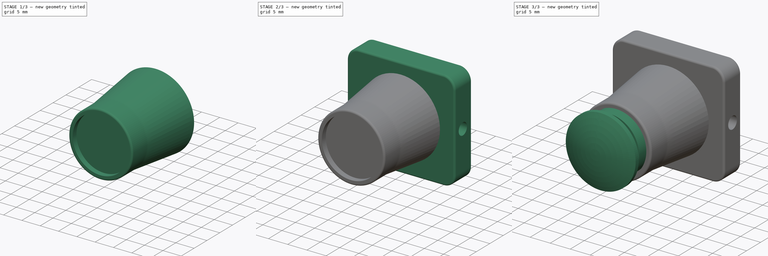
[diagram: build sequence overview — one tinted view per stage of 3, left to right]
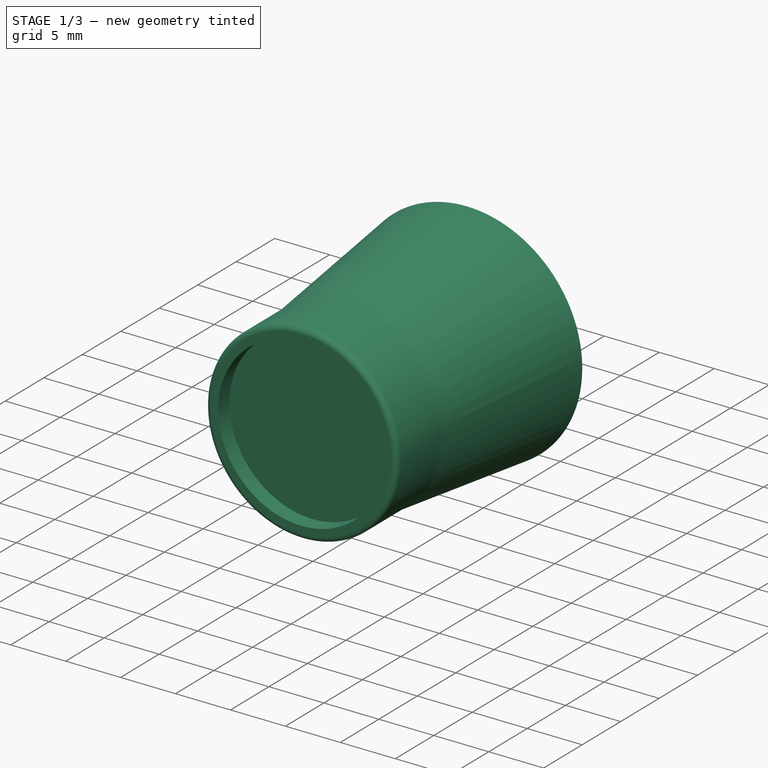
[diagram: stage 1 of 3 — iso view after this stage's code; geometry added in this stage tinted green]
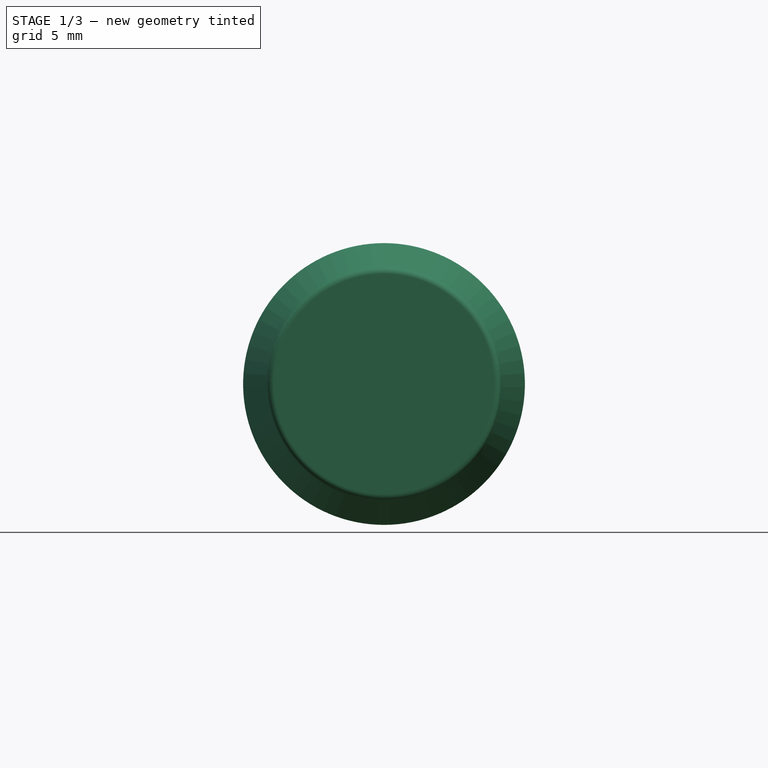
[diagram: stage 1 of 3 — front view after this stage's code; geometry added in this stage tinted green]
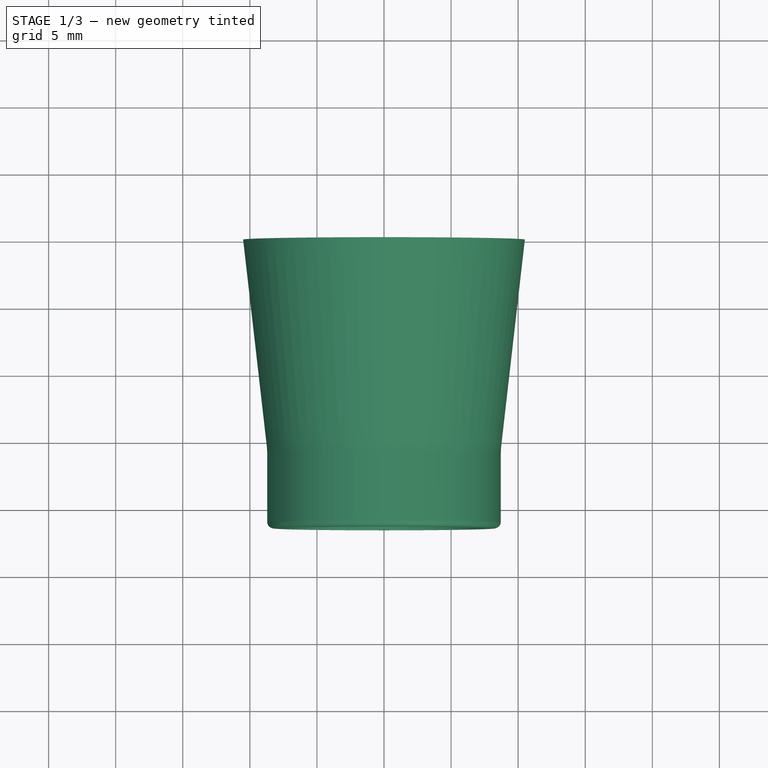
[diagram: stage 1 of 3 — top view after this stage's code; geometry added in this stage tinted green]
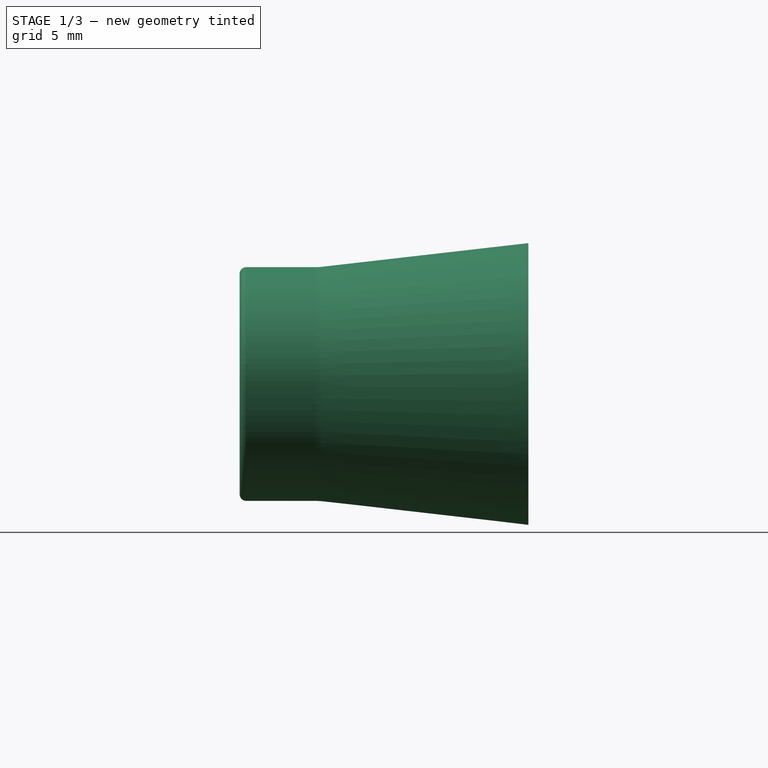
[diagram: stage 1 of 3 — right view after this stage's code; geometry added in this stage tinted green]
FCSTD DOCUMENT  (FreeCAD 0.18RUnknown)
Label: foxeer
License: All rights reserved
LicenseURL: http://en.wikipedia.org/wiki/All_rights_reserved
objects: Sketcher::SketchObject×4, PartDesign::Body×3, PartDesign::Fillet×3, PartDesign::Revolution×2, PartDesign::Pad×1, PartDesign::Pocket×1
note: 18 computed .brp shape members not serialized (recipe doc carries the construction recipe); baked Part::Feature solids carry a one-line shape summary decoded from their .brp

FEATURE [Sketcher::SketchObject] CopySketch003  label="Sketch003"
  Placement = pos=(0,0,0) rot=(0.57735,0.57735,0.57735;2.0944rad)
  sketch-geometry (12):
    g0: LineSegment [constr] StartX=0 StartY=12.9192 StartZ=0 EndX=-27 EndY=12.9192 EndZ=0
    g1: LineSegment [constr] StartX=-27 StartY=12.9192 StartZ=0 EndX=-27 EndY=-13.0808 EndZ=0
    g2: LineSegment [constr] StartX=-27 StartY=-13.0808 StartZ=0 EndX=0 EndY=-13.0808 EndZ=0
    g3: LineSegment [constr] StartX=0 StartY=-13.0808 StartZ=0 EndX=0 EndY=12.9192 EndZ=0
    g4: LineSegment StartX=-0.000444422 StartY=0 StartZ=0 EndX=-0.000444422 EndY=10.5018 EndZ=0
    g5: LineSegment StartX=-0.000444422 StartY=10.5018 StartZ=0 EndX=-15.4397 EndY=8.73314 EndZ=0
    g6: LineSegment StartX=-15.8644 StartY=8.70889 StartZ=0 EndX=-21.53 EndY=8.70889 EndZ=0
    g7: LineSegment StartX=-21.53 StartY=7.54936 StartZ=0 EndX=-20.0725 EndY=7.54936 EndZ=0
    g8: LineSegment StartX=-20.0725 StartY=7.54936 StartZ=0 EndX=-20.0725 EndY=0 EndZ=0
    g9: LineSegment StartX=-20.0725 StartY=0 StartZ=0 EndX=-0.000444422 EndY=0 EndZ=0
    g10: ArcOfCircle CenterX=-15.8644 CenterY=12.4405 CenterZ=0 NormalX=0 NormalY=0 NormalZ=1 AngleXU=0 Radius=3.73157 StartAngle=4.71239 EndAngle=4.82645
    g11: LineSegment StartX=-21.53 StartY=8.70889 StartZ=0 EndX=-21.53 EndY=7.54936 EndZ=0
  constraints (26):
    c: Coincident(g0,g1)
    c: Coincident(g1,g2)
    c: Coincident(g2,g3)
    c: Coincident(g3,g0)
    c: Horizontal(g0)
    c: Horizontal(g2)
    c: Vertical(g1)
    c: Vertical(g3)
    c: DistanceX(g0,g0) = 27
    c: DistanceY(g3,g3) = 26
    c: PointOnObject(g4,g-1)
    c: Vertical(g4)
    c: Coincident(g5,g4)
    c: Horizontal(g6)
    c: Horizontal(g7)
    c: Vertical(g8)
    c: Coincident(g9,g4)
    c: Tangent(g6,g10) = 1.5708
    c: Tangent(g5,g10) = 1.5708
    c: PointOnObject(g0,g-2)
    c: Coincident(g8,g7)
    c: Coincident(g11,g6)
    c: Coincident(g11,g7)
    c: Vertical(g11)
    c: Coincident(g8,g9)
    c: Horizontal(g9)
FEATURE [PartDesign::Revolution] Revolution001
  Angle = 360
  Axis = (1.129e-13,1,-1.129e-13)
  Base = (0,0,0)
  Placement = pos=(0,0,0) rot=(0.57735,0.57735,0.57735;2.0944rad)
  Profile = -> CopySketch003
  ReferenceAxis = -> CopySketch003 [H_Axis]
FEATURE [PartDesign::Body] Body
  Group = -> [Sketch,Pad,Sketch002,Pocket,Fillet,Fillet001]
  Origin = -> Origin
  Tip = -> Fillet001
FEATURE [PartDesign::Fillet] Fillet002
  Base = -> Revolution001 [Edge2]
  BaseFeature = -> Revolution001
  Placement = pos=(0,0,0) rot=(0.57735,0.57735,0.57735;2.0944rad)
  Radius = 0.5
FEATURE [PartDesign::Body] Body001
  Group = -> [Revolution001,Fillet002]
  Origin = -> Origin001
  Tip = -> Fillet002
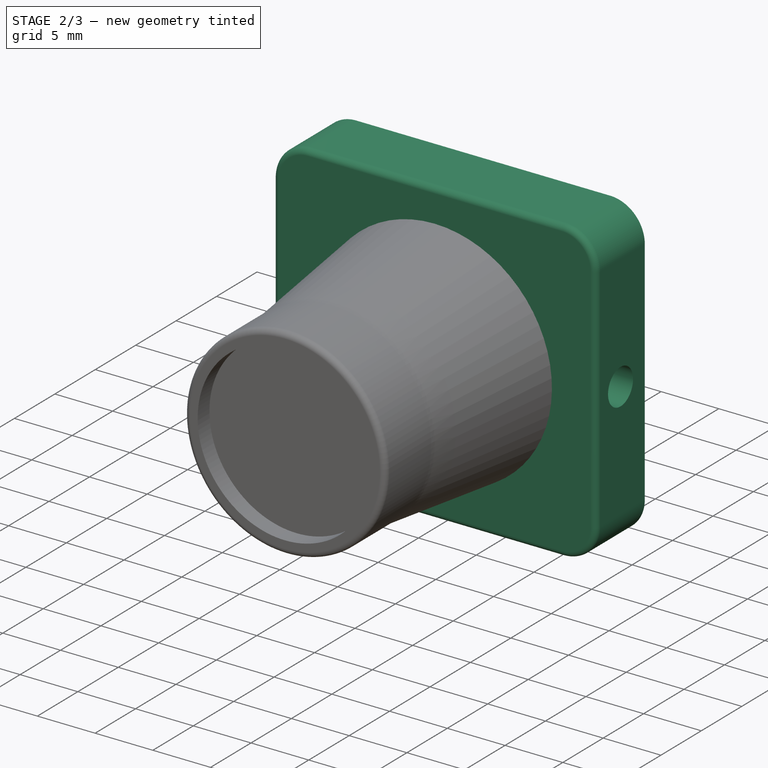
[diagram: stage 2 of 3 — iso view after this stage's code; geometry added in this stage tinted green]
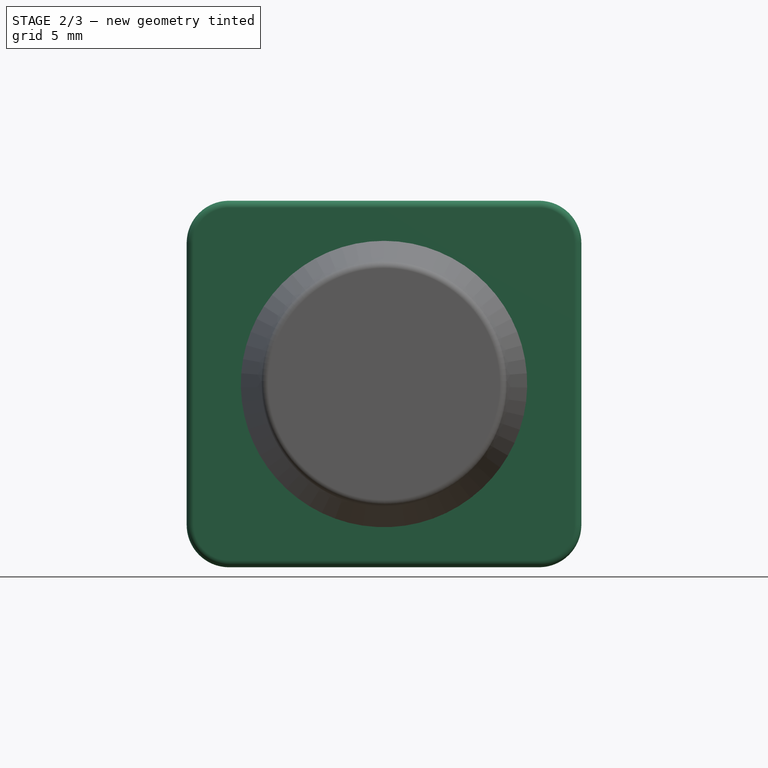
[diagram: stage 2 of 3 — front view after this stage's code; geometry added in this stage tinted green]
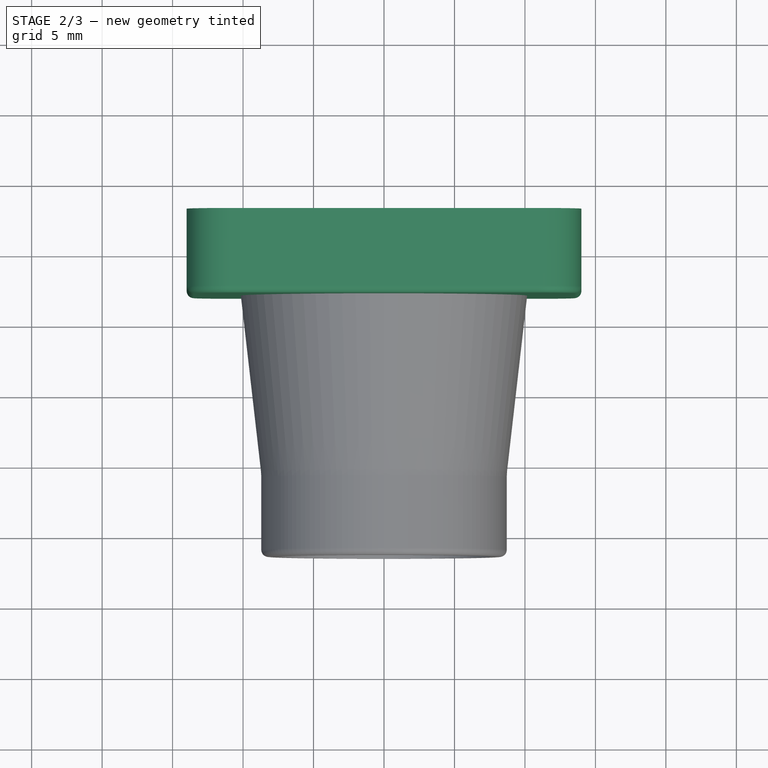
[diagram: stage 2 of 3 — top view after this stage's code; geometry added in this stage tinted green]
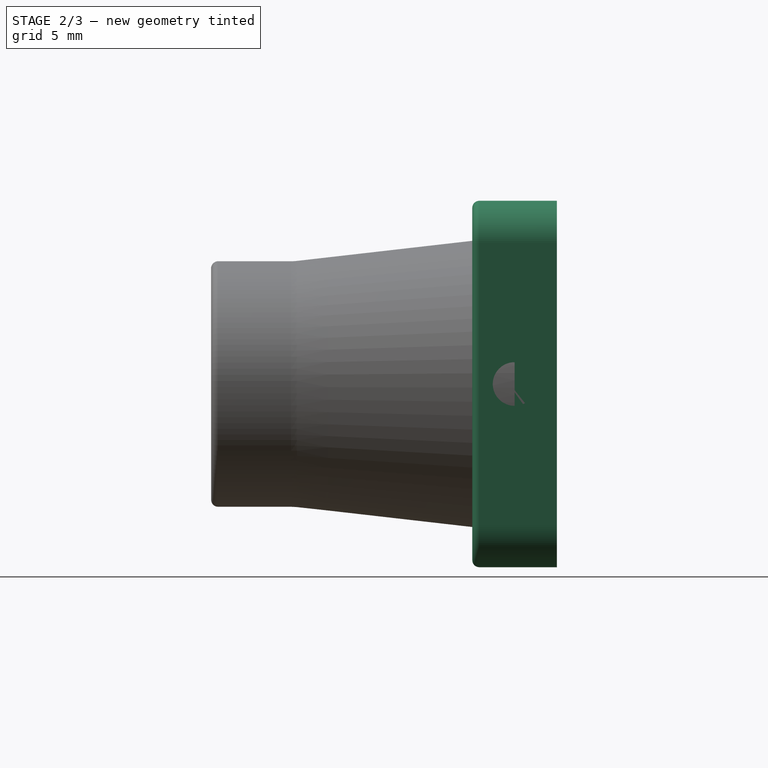
[diagram: stage 2 of 3 — right view after this stage's code; geometry added in this stage tinted green]
FEATURE [Sketcher::SketchObject] Sketch
  MapMode = 5
  Placement = pos=(0,0,0) rot=(1,0,0;1.5708rad)
  Support = -> [XZ_Plane]
  sketch-geometry (12):
    g0: LineSegment [constr] StartX=-14 StartY=13 StartZ=0 EndX=14 EndY=13 EndZ=0
    g1: LineSegment [constr] StartX=14 StartY=13 StartZ=0 EndX=14 EndY=-13 EndZ=0
    g2: LineSegment [constr] StartX=14 StartY=-13 StartZ=0 EndX=-14 EndY=-13 EndZ=0
    g3: LineSegment [constr] StartX=-14 StartY=-13 StartZ=0 EndX=-14 EndY=13 EndZ=0
    g4: LineSegment StartX=-11 StartY=13 StartZ=0 EndX=11 EndY=13 EndZ=0
    g5: LineSegment StartX=14 StartY=10 StartZ=0 EndX=14 EndY=-10 EndZ=0
    g6: LineSegment StartX=11 StartY=-13 StartZ=0 EndX=-11 EndY=-13 EndZ=0
    g7: LineSegment StartX=-14 StartY=-10 StartZ=0 EndX=-14 EndY=10 EndZ=0
    g8: ArcOfCircle CenterX=11 CenterY=10 CenterZ=0 NormalX=0 NormalY=0 NormalZ=1 AngleXU=0 Radius=3 StartAngle=0 EndAngle=1.5708
    g9: ArcOfCircle CenterX=11 CenterY=-10 CenterZ=0 NormalX=0 NormalY=0 NormalZ=1 AngleXU=0 Radius=3 StartAngle=4.71239 EndAngle=6.28319
    g10: ArcOfCircle CenterX=-11 CenterY=-10 CenterZ=0 NormalX=0 NormalY=0 NormalZ=1 AngleXU=0 Radius=3 StartAngle=3.14159 EndAngle=4.71239
    g11: ArcOfCircle CenterX=-11 CenterY=10 CenterZ=0 NormalX=0 NormalY=0 NormalZ=1 AngleXU=0 Radius=3 StartAngle=1.5708 EndAngle=3.14159
  constraints (30):
    c: Coincident(g0,g1)
    c: Coincident(g1,g2)
    c: Coincident(g2,g3)
    c: Coincident(g3,g0)
    c: Horizontal(g0)
    c: Horizontal(g2)
    c: Vertical(g1)
    c: Vertical(g3)
    c: DistanceY(g1,g0) = 26
    c: DistanceX(g0,g0) = 28
    c: Horizontal(g4)
    c: Horizontal(g6)
    c: Vertical(g5)
    c: Vertical(g7)
    c: Tangent(g4,g8) = 1.5708
    c: Tangent(g5,g8) = 1.5708
    c: Tangent(g6,g9) = 1.5708
    c: Tangent(g5,g9) = 1.5708
    c: Tangent(g6,g10) = 1.5708
    c: Tangent(g7,g10) = 1.5708
    c: Tangent(g4,g11) = 1.5708
    c: Tangent(g7,g11) = 1.5708
    c: PointOnObject(g4,g0)
    c: PointOnObject(g6,g2)
    c: DistanceX(g7,g5) = 28
    c: Equal(g11,g9)
    c: Equal(g9,g8)
    c: Symmetric(g7,g5,g-2)
    c: Symmetric(g0,g1,g-1)
    c: Radius(g10) = 3
FEATURE [PartDesign::Pad] Pad
  Length = 6
  Length2 = 100
  Midplane = true
  Placement = pos=(0,0,0) rot=(1,0,0;1.5708rad)
  Profile = -> Sketch
  Type = 0
FEATURE [Sketcher::SketchObject] Sketch002
  MapMode = 5
  Placement = pos=(14,0,0) rot=(0.707107,0,0.707107;3.14159rad)
  sketch-geometry (1):
    g0: Circle CenterX=0 CenterY=0 CenterZ=0 NormalX=0 NormalY=0 NormalZ=1 AngleXU=0 Radius=1.54752
  constraints (1):
    c: Coincident(g0,g-1)
FEATURE [PartDesign::Pocket] Pocket
  BaseFeature = -> Pad
  Length = 5
  Length2 = 100
  Placement = pos=(0,0,0) rot=(1,0,0;1.5708rad)
  Profile = -> Sketch002
  Type = 0
FEATURE [PartDesign::Body] Body002
  Group = -> [Revolution002]
  Origin = -> Origin002
  Tip = -> Revolution002
FEATURE [PartDesign::Fillet] Fillet
  Base = -> Pocket [Face5]
  BaseFeature = -> Pocket
  Placement = pos=(0,0,0) rot=(1,0,0;1.5708rad)
  Radius = 0.5
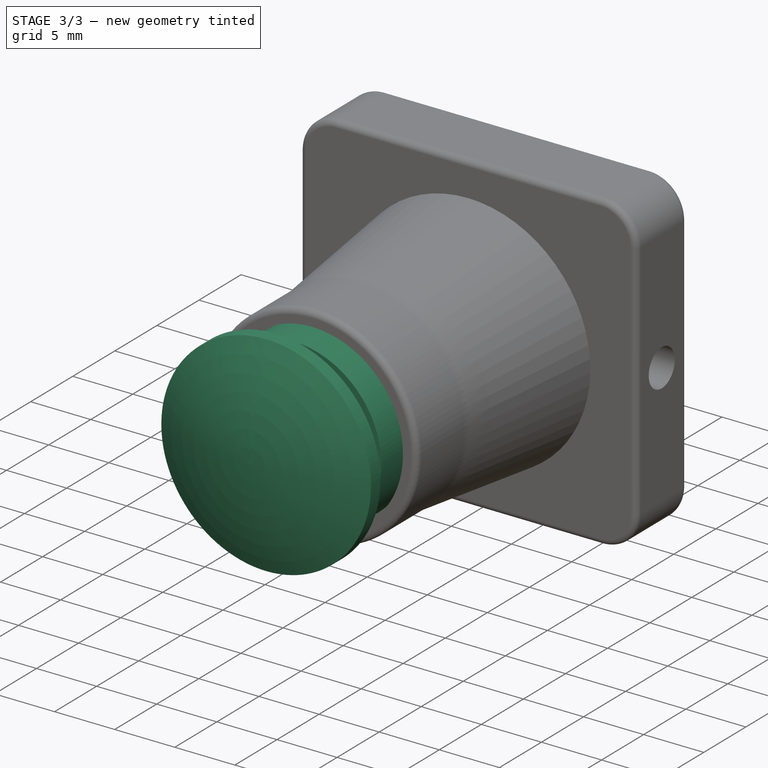
[diagram: stage 3 of 3 — iso view after this stage's code; geometry added in this stage tinted green]
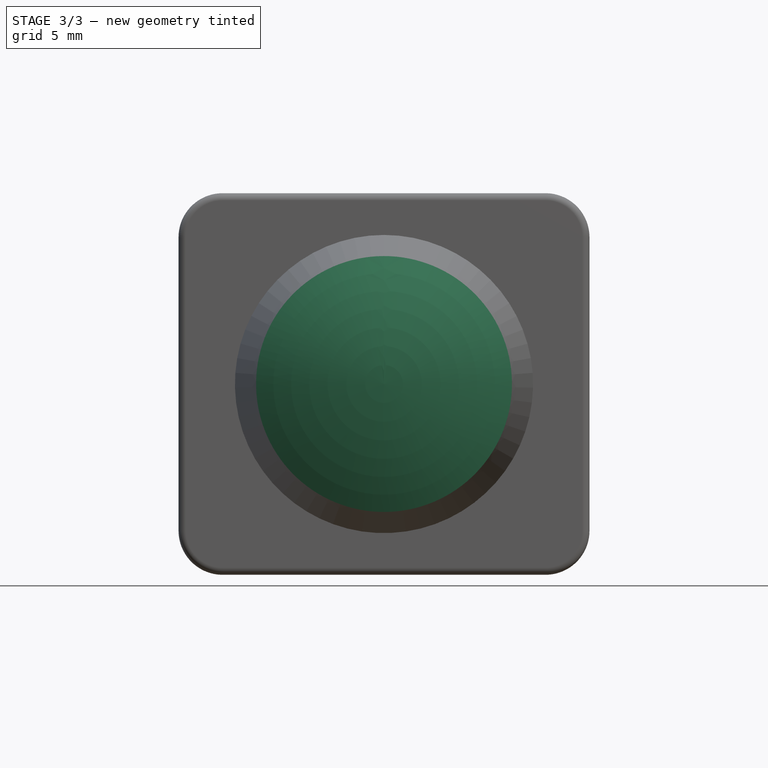
[diagram: stage 3 of 3 — front view after this stage's code; geometry added in this stage tinted green]
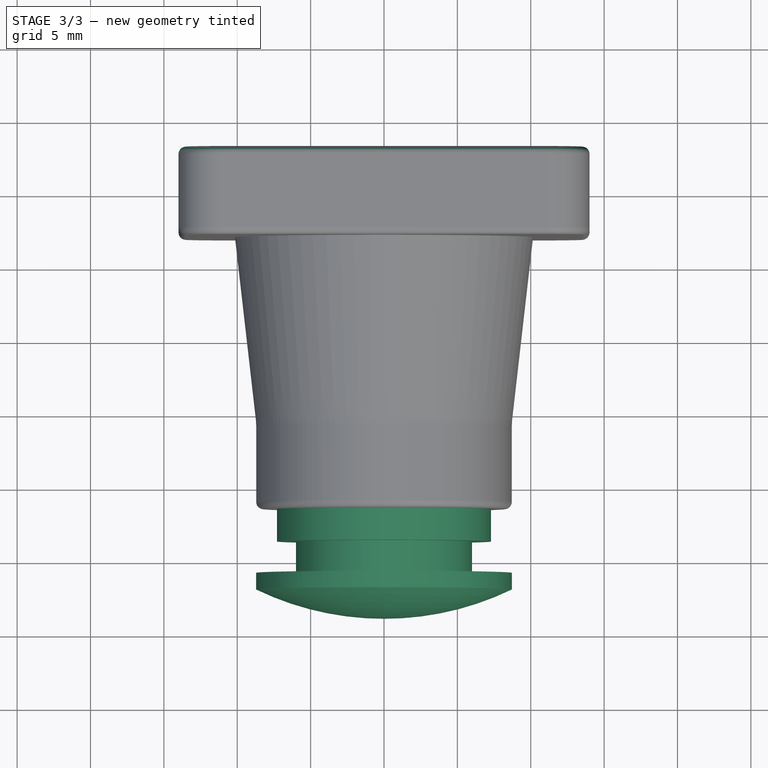
[diagram: stage 3 of 3 — top view after this stage's code; geometry added in this stage tinted green]
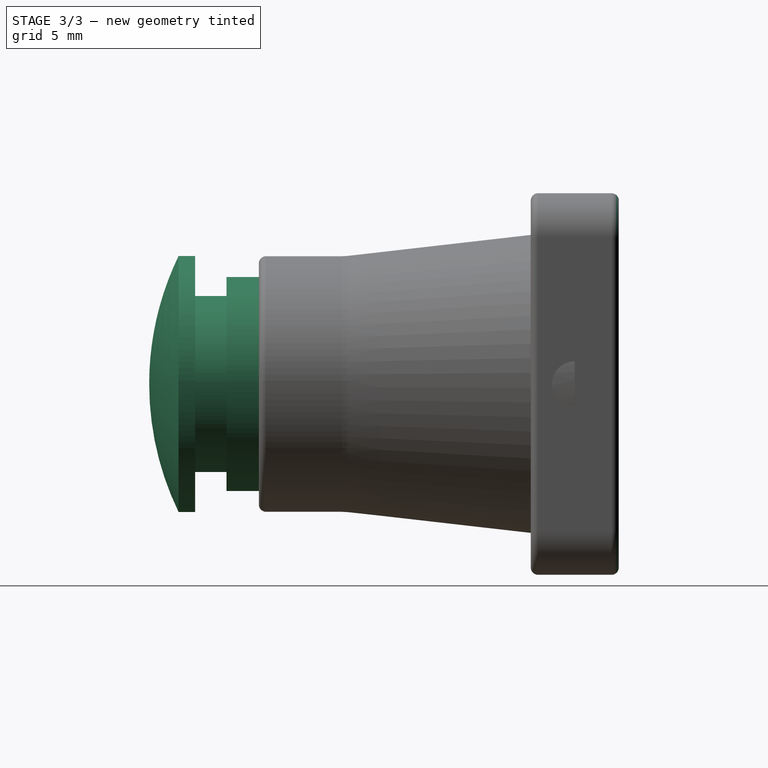
[diagram: stage 3 of 3 — right view after this stage's code; geometry added in this stage tinted green]
FEATURE [Sketcher::SketchObject] CopySketch003001  label="CopySketch003"
  Placement = pos=(0,0,0) rot=(0.57735,0.57735,0.57735;2.0944rad)
  sketch-geometry (12):
    g0: LineSegment [constr] StartX=0 StartY=12.9192 StartZ=0 EndX=-27 EndY=12.9192 EndZ=0
    g1: LineSegment [constr] StartX=-27 StartY=12.9192 StartZ=0 EndX=-27 EndY=-13.0808 EndZ=0
    g2: LineSegment [constr] StartX=-27 StartY=-13.0808 StartZ=0 EndX=0 EndY=-13.0808 EndZ=0
    g3: LineSegment [constr] StartX=0 StartY=-13.0808 StartZ=0 EndX=0 EndY=12.9192 EndZ=0
    g4: LineSegment StartX=-20.2264 StartY=7.29419 StartZ=0 EndX=-23.7345 EndY=7.29419 EndZ=0
    g5: LineSegment StartX=-23.7345 StartY=7.29419 StartZ=0 EndX=-23.7345 EndY=6 EndZ=0
    g6: LineSegment StartX=-23.7345 StartY=6 StartZ=0 EndX=-25.8724 EndY=6 EndZ=0
    g7: LineSegment StartX=-25.8724 StartY=6 StartZ=0 EndX=-25.8724 EndY=8.71813 EndZ=0
    g8: LineSegment StartX=-25.8724 StartY=8.71813 StartZ=0 EndX=-27 EndY=8.71813 EndZ=0
    g9: ArcOfCircle CenterX=-9.00016 CenterY=0 CenterZ=0 NormalX=0 NormalY=0 NormalZ=1 AngleXU=0 Radius=20 StartAngle=2.69055 EndAngle=3.14159
    g10: LineSegment StartX=-29.0002 StartY=-4.1365e-12 StartZ=0 EndX=-20.2264 EndY=0 EndZ=0
    g11: LineSegment StartX=-20.2264 StartY=0 StartZ=0 EndX=-20.2264 EndY=7.29419 EndZ=0
  constraints (30):
    c: Coincident(g0,g1)
    c: Coincident(g1,g2)
    c: Coincident(g2,g3)
    c: Coincident(g3,g0)
    c: Horizontal(g0)
    c: Horizontal(g2)
    c: Vertical(g1)
    c: Vertical(g3)
    c: DistanceX(g0,g0) = 27
    c: DistanceY(g3,g3) = 26
    c: PointOnObject(g10,g-1)
    c: Horizontal(g4)
    c: Vertical(g5)
    c: Horizontal(g6)
    c: Vertical(g7)
    c: Horizontal(g8)
    c: Coincident(g9,g8)
    c: Coincident(g8,g7)
    c: PointOnObject(g9,g-1)
    c: PointOnObject(g9,g-1)
    c: Radius(g9) = 20
    c: Coincident(g10,g9)
    c: PointOnObject(g8,g1)
    c: PointOnObject(g0,g-2)
    c: Coincident(g7,g6)
    c: Coincident(g5,g6)
    c: Coincident(g5,g4)
    c: Coincident(g11,g4)
    c: Vertical(g11)
    c: Coincident(g11,g10)
FEATURE [PartDesign::Revolution] Revolution002
  Angle = 360
  Axis = (1.129e-13,1,-1.129e-13)
  Base = (0,0,0)
  Placement = pos=(0,0,0) rot=(0.57735,0.57735,0.57735;2.0944rad)
  Profile = -> CopySketch003001
  ReferenceAxis = -> CopySketch003001 [H_Axis]
FEATURE [PartDesign::Fillet] Fillet001
  Base = -> Fillet [Face4]
  BaseFeature = -> Fillet
  Placement = pos=(0,0,0) rot=(1,0,0;1.5708rad)
  Radius = 0.5
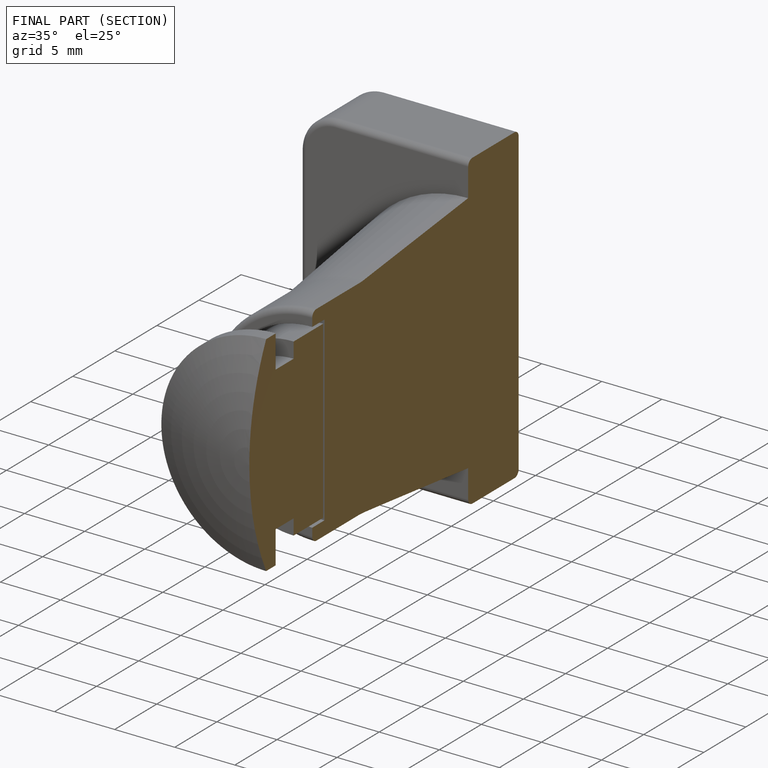
[diagram: finished part — half-section view (interior)]
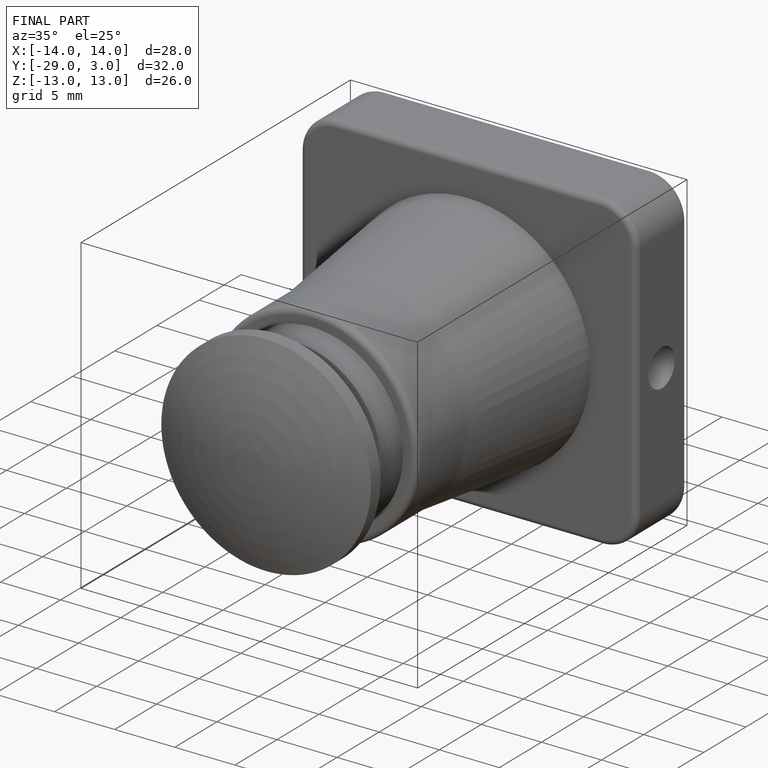
[diagram: finished part — iso view with bounding-box wireframe]
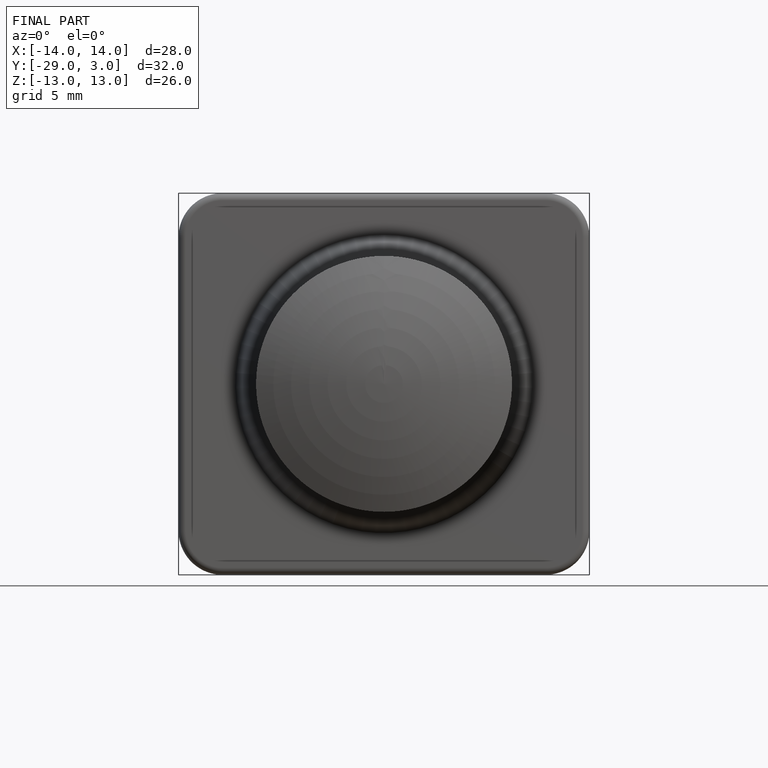
[diagram: finished part — front view with bounding-box wireframe]
